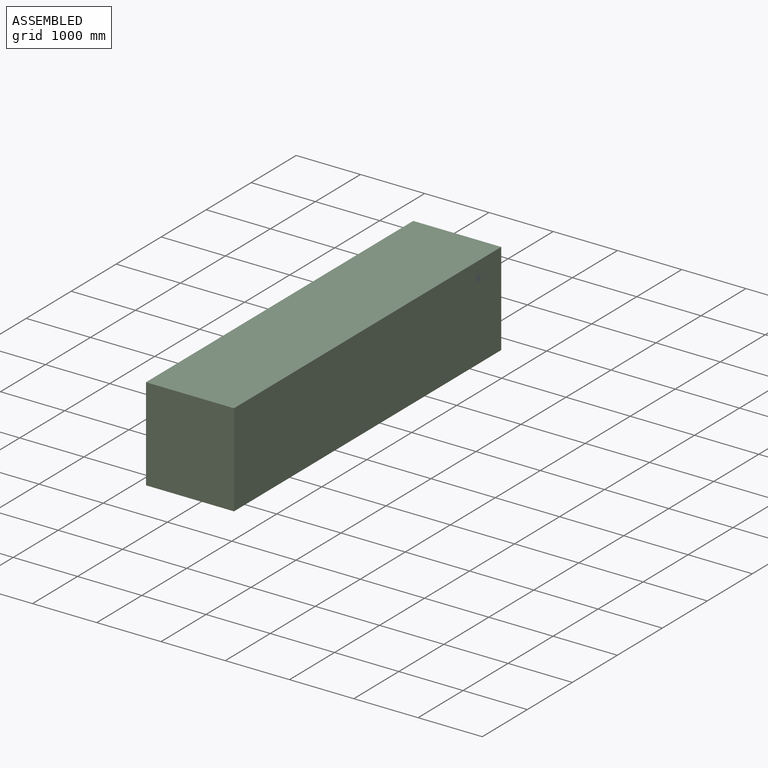
[diagram: assembled view]
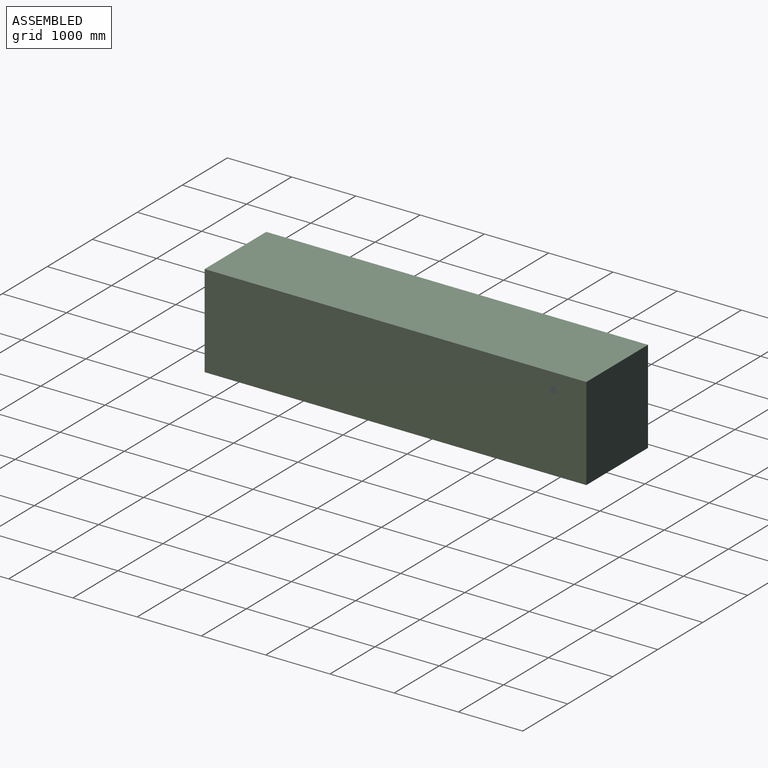
[diagram: assembled view, second angle]
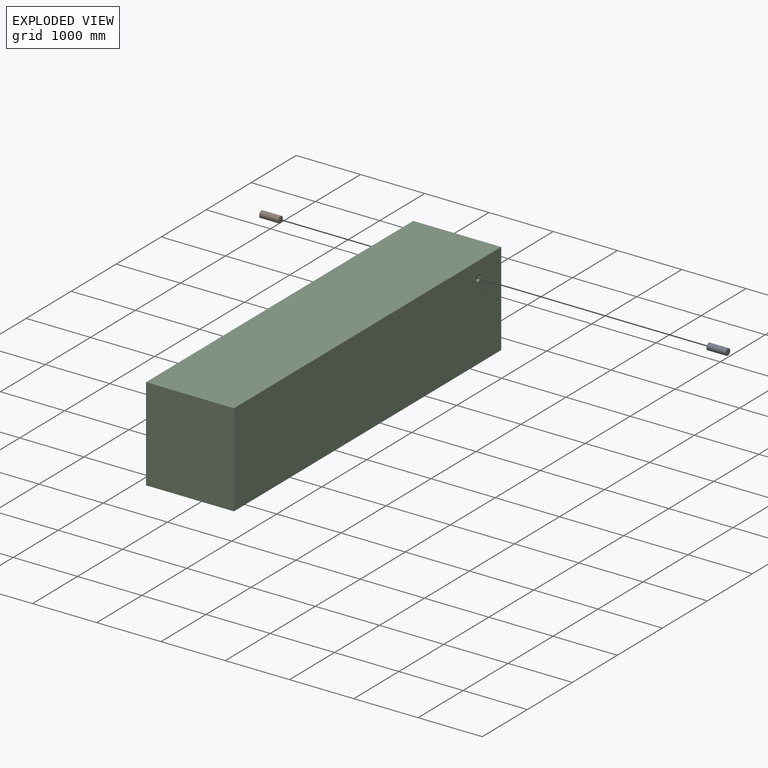
[diagram: exploded view]
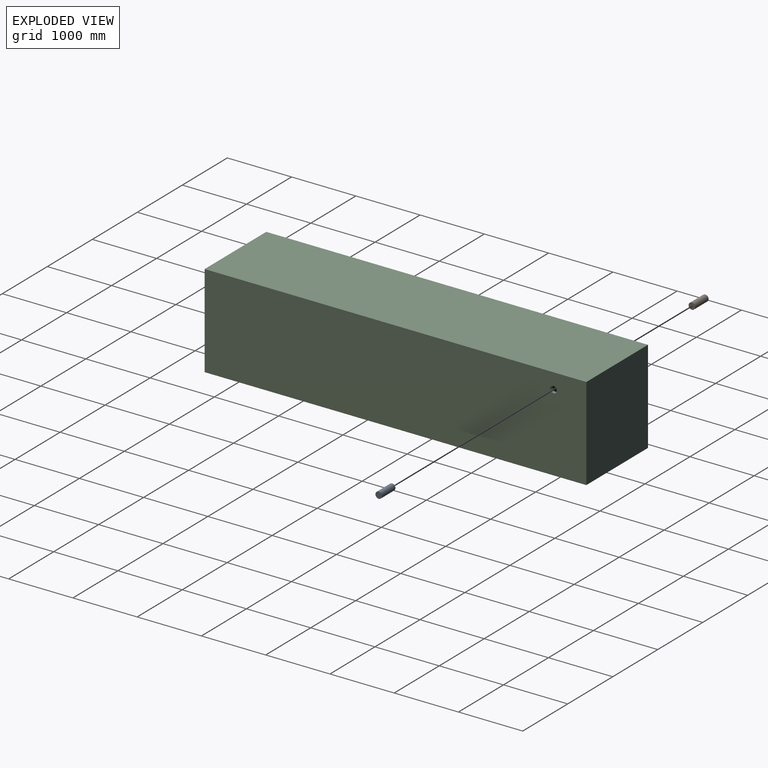
[diagram: exploded view, second angle]
ASSEMBLY  parts=3 mates=2
PART A: 3 faces, bbox 101.6x300x101.6 mm
  f0: cylinder r=50.8mm len=300mm, axis (0,1,0), area 95755.7mm2, adj f1,f2
  f1: plane 101.6x101.6mm, normal (0,-1,0), area 8107.3mm2, adj f0
  f2: plane 101.6x101.6mm, normal (0,1,0), area 8107.3mm2, adj f0
PART B: same geometry as A
PART C: 14 faces, bbox 1370x5940x1450 mm
  f0: plane 5840x1270mm, normal (0,0,-1), area 7416800mm2, adj f1,f3,f4,f5
  f1: plane 5840x1350mm, normal (1,0,0), area 7875892.7mm2, adj f0,f2,f4,f5,f7
  f2: plane 5840x1270mm, normal (0,0,1), area 7416800mm2, adj f1,f3,f4,f5
  f3: plane 5840x1350mm, normal (-1,0,0), area 7875892.7mm2, adj f0,f2,f4,f5,f6
  f4: plane 1350x1270mm, normal (0,1,0), area 1714500mm2, adj f0,f1,f2,f3
  f5: plane 1350x1270mm, normal (0,-1,0), area 1714500mm2, adj f0,f1,f2,f3
  f6: cylinder r=50.8mm len=101.6mm, axis (-1,0,0), area 15959.3mm2, adj f3,f11
  f7: cylinder r=50.8mm len=101.6mm, axis (-1,0,0), area 15959.3mm2, adj f1,f9
  f8: plane 5940x1370mm, normal (0,0,1), area 8137800mm2, adj f9,f11,f12,f13
  f9: plane 5940x1450mm, normal (-1,0,0), area 8604892.7mm2, adj f7,f8,f10,f12,f13
  f10: plane 5940x1370mm, normal (0,0,-1), area 8137800mm2, adj f9,f11,f12,f13
  f11: plane 5940x1450mm, normal (1,0,0), area 8604892.7mm2, adj f6,f8,f10,f12,f13
  f12: plane 1450x1370mm, normal (0,-1,0), area 1986500mm2, adj f8,f9,f10,f11
  f13: plane 1450x1370mm, normal (0,1,0), area 1986500mm2, adj f8,f9,f10,f11
PLACE A rot(axis=(-0.58,0.58,0.58),120deg) t=(-675.35,2015.23,732.98)mm
PLACE B rot(axis=(0.58,0.58,-0.58),120deg) t=(-1445.35,2015.23,732.98)mm
PLACE C t=(-1061.18,-443.92,66.95)mm
MATE fastened B.f0 <-> C.f6  axis (-1,0,0) through (-1745.35,2015.23,732.98)mm
MATE fastened A.f0 <-> C.f6  axis (1,0,0) through (-375.35,2015.23,732.98)mm
